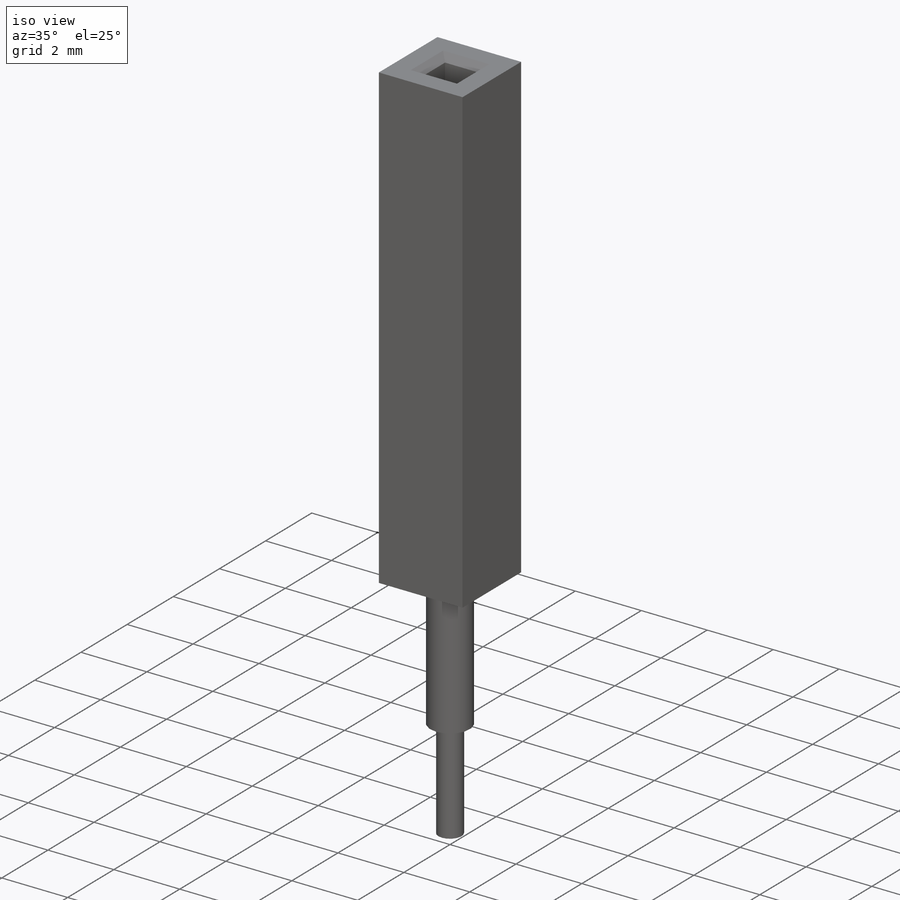
[diagram: iso view]
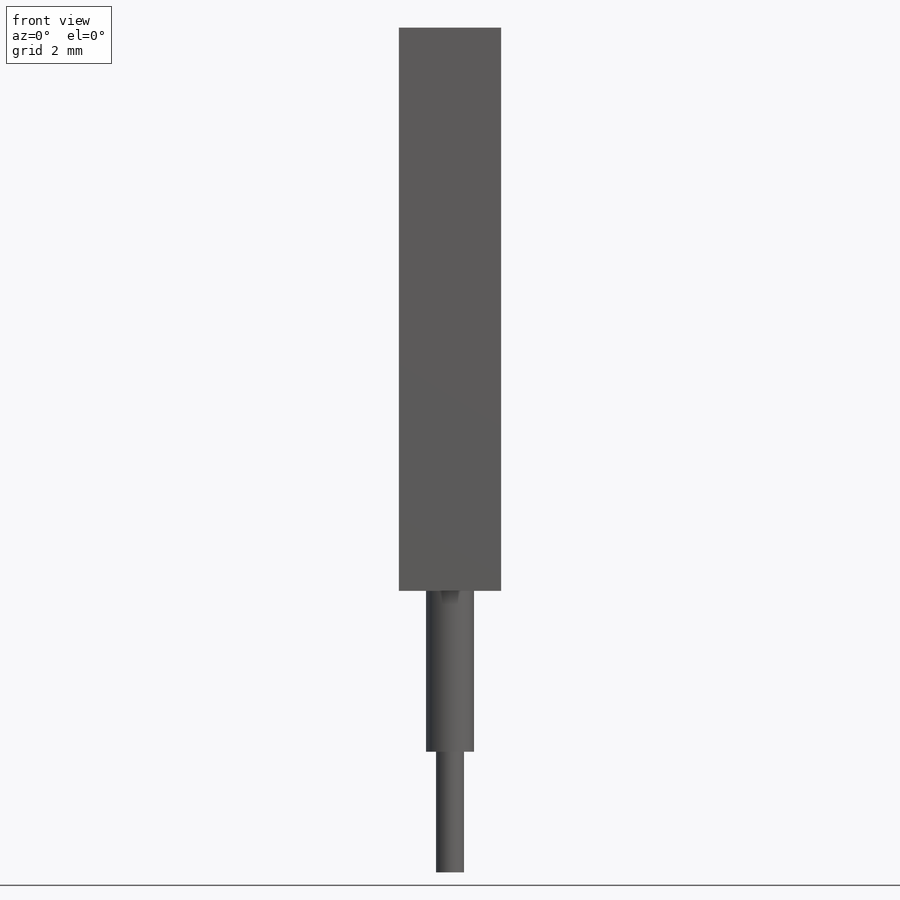
[diagram: front view]
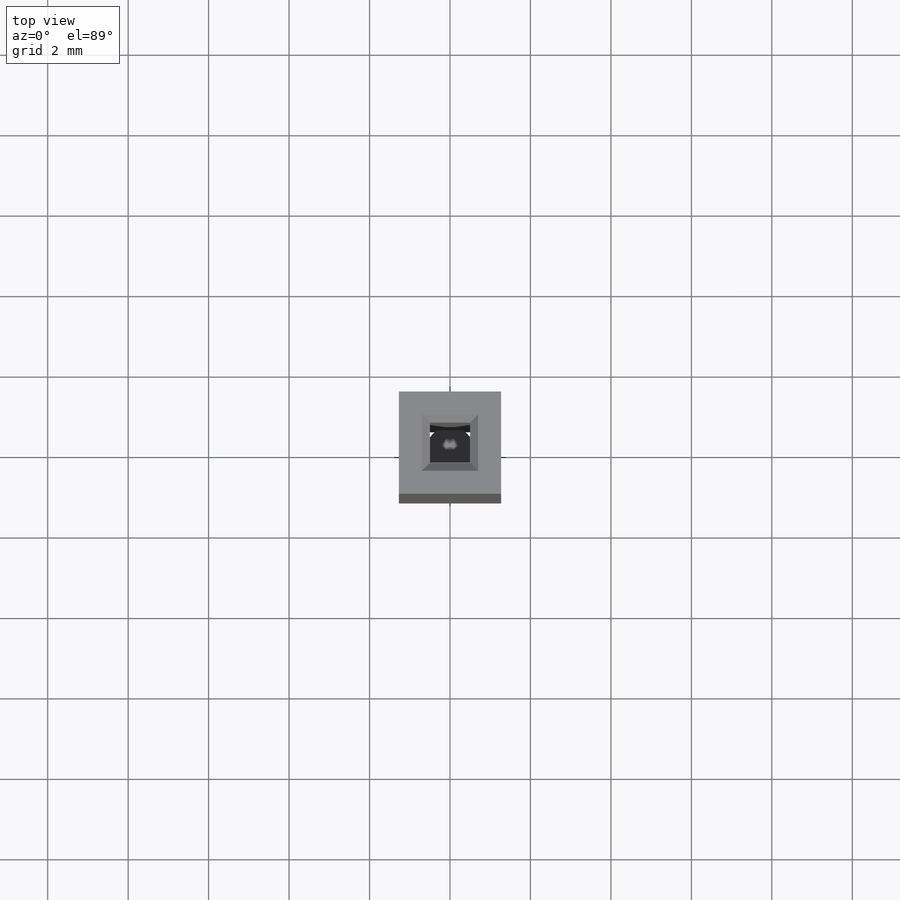
[diagram: top view]
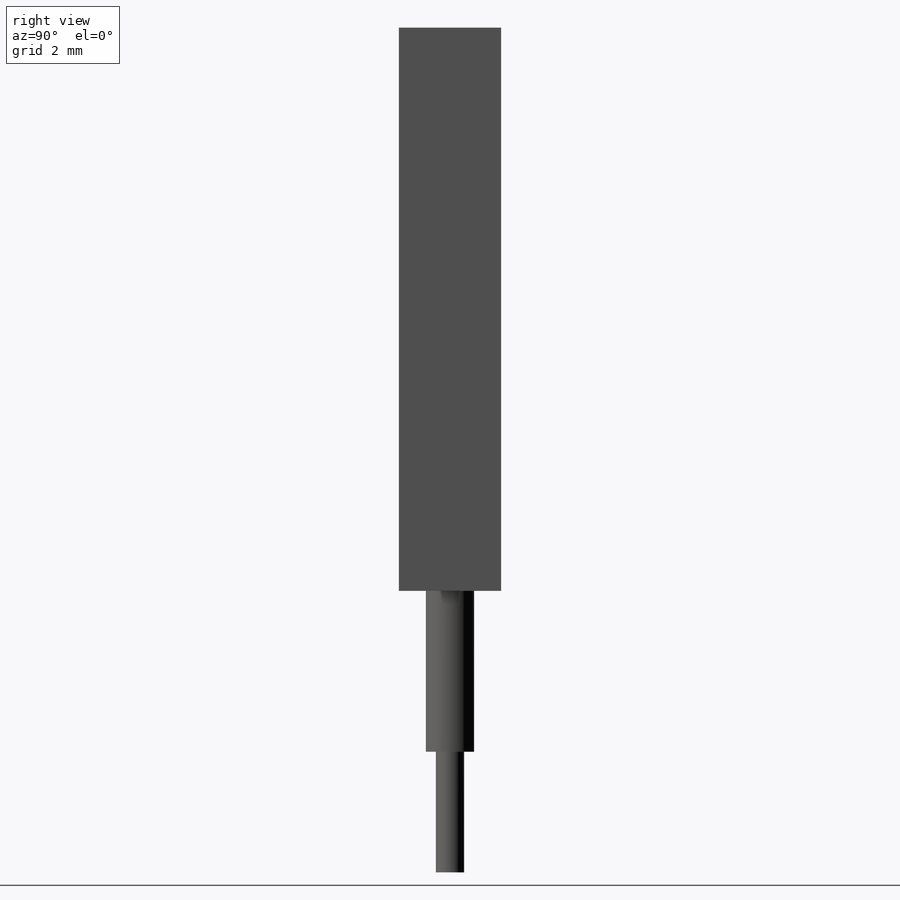
[diagram: right view]
SOLIDWORKS PART (.sldprt)
format: sldprt  version: not decoded by parser v0  size: 210,432 bytes
history: native  units: mm
features: material x3, extrude x3, plane x1, sketch x1, chamfer x1 (+11 scaffold rows collapsed)
feature tree (20):
  scaffold x11  (default folders/planes/origin — collapsed)
  material  "Материал <не указан>"
  material  "Эскиз3"
  material  "Эскиз4"
  plane  "Спереди"
  sketch  "Эскиз1"  dims[D1=2.54mm D2=1.0mm]
  extrude  "Бобышка-Вытянуть1"  Depth=14mm
  chamfer  "Фаска1"  Distance=0.2mm Angle=45deg
  extrude  "Бобышка-Вытянуть2"  Depth=7mm
  extrude  "Бобышка-Вытянуть3"  Depth=3mm
decode coverage: 5 of 5 modeling features carry decoded parameters
note: suppression state not decoded; provenance and decode notes live in map.json
